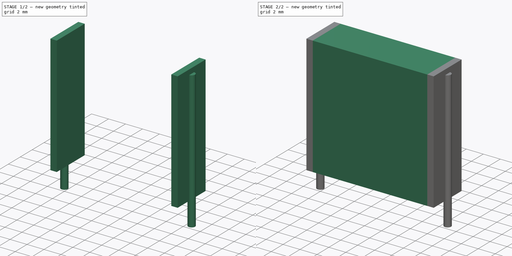
[diagram: build sequence overview — one tinted view per stage of 2, left to right]
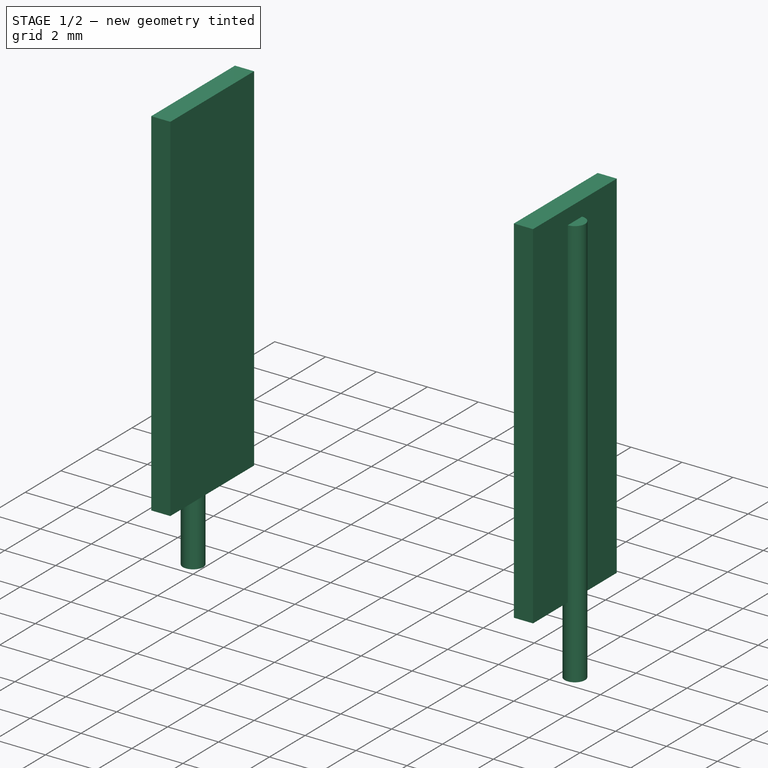
[diagram: stage 1 of 2 — iso view after this stage's code; geometry added in this stage tinted green]
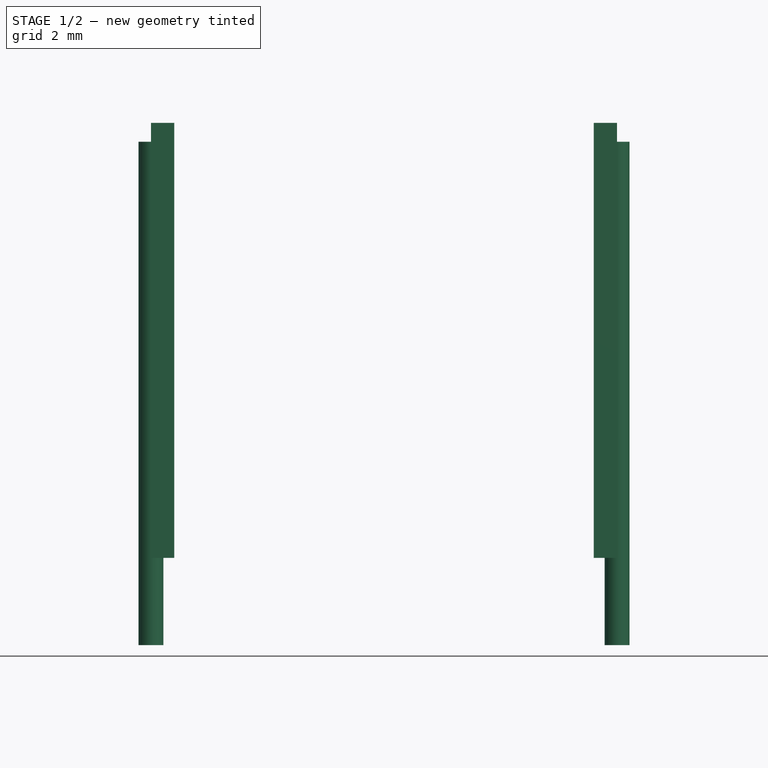
[diagram: stage 1 of 2 — front view after this stage's code; geometry added in this stage tinted green]
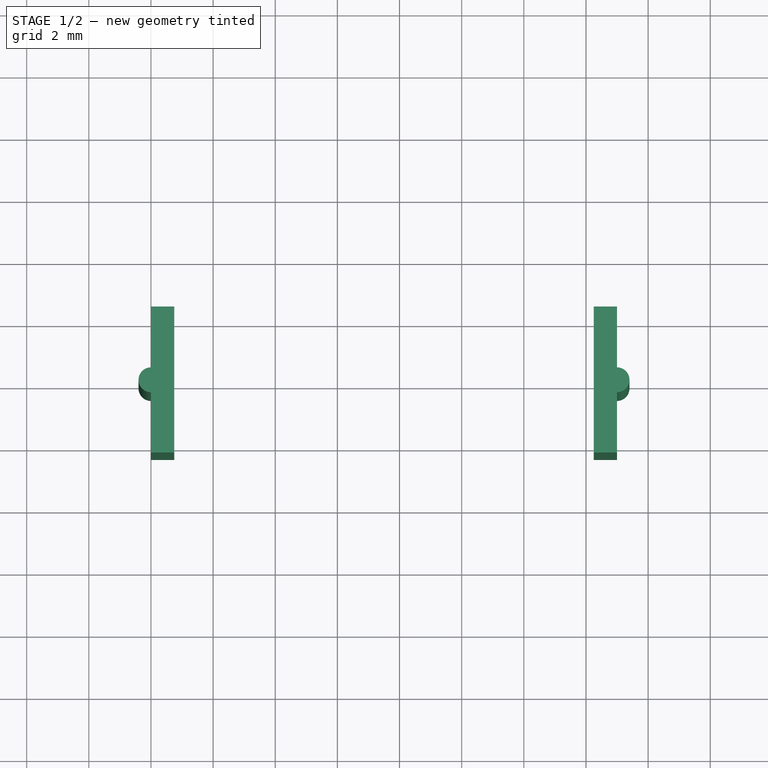
[diagram: stage 1 of 2 — top view after this stage's code; geometry added in this stage tinted green]
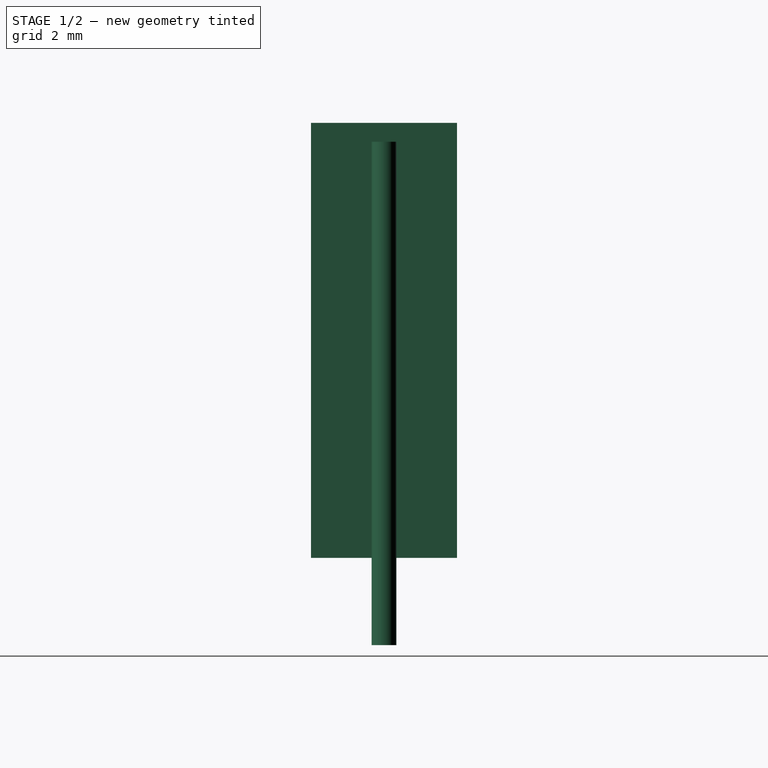
[diagram: stage 1 of 2 — right view after this stage's code; geometry added in this stage tinted green]
FCSTD DOCUMENT  (FreeCAD 0.16R6703 (Git))
Label: C_Rect_L16.5mm_W4.7mm_P15.00mm_MKT
License: All rights reserved
LicenseURL: http://en.wikipedia.org/wiki/All_rights_reserved
objects: Sketcher::SketchObject×3, PartDesign::Pad×3, Spreadsheet::Sheet×1
note: 9 computed .brp shape members not serialized (recipe doc carries the construction recipe); baked Part::Feature solids carry a one-line shape summary decoded from their .brp

FEATURE [Sketcher::SketchObject] Sketch001
  Placement = pos=(0,0,0.5) rot=(0,0,1;0rad)
  expr: Constraints[3] = Spreadsheet.d_wire / 2
  expr: Constraints[2] = max(Spreadsheet.RMx; Spreadsheet.RMy)
  sketch-geometry (2):
    g0: Circle CenterX=0 CenterY=0 CenterZ=0 NormalX=0 NormalY=0 NormalZ=1 Radius=0.4
    g1: Circle CenterX=15 CenterY=0 CenterZ=0 NormalX=0 NormalY=0 NormalZ=1 Radius=0.4
  constraints (5):
    c: Coincident(g0,g-1)
    c: PointOnObject(g1,g-1)
    c: DistanceX(g-1,g1) = 15
    c: Radius(g0) = 0.4
    c: Equal(g0,g1)
FEATURE [PartDesign::Pad] Pad001
  Length = 13
  Length2 = 3.2
  Placement = pos=(0,0,0.5) rot=(0,0,1;0rad)
  Reversed = true
  Sketch = -> Sketch001
  Type = 4
  expr: Length = Spreadsheet.H - 1
FEATURE [Sketcher::SketchObject] Sketch002
  Placement = pos=(0,0,0.105) rot=(0,0,1;0rad)
  expr: Constraints[21] = max(Spreadsheet.RMx; Spreadsheet.RMy) * 0.1 / 2
  expr: Constraints[20] = Spreadsheet.Wy
  expr: Constraints[18] = max(Spreadsheet.RMx; Spreadsheet.RMy)
  sketch-geometry (8):
    g0: LineSegment StartX=0 StartY=2.35 StartZ=0 EndX=0.75 EndY=2.35 EndZ=0
    g1: LineSegment StartX=0.75 StartY=2.35 StartZ=0 EndX=0.75 EndY=-2.35 EndZ=0
    g2: LineSegment StartX=0.75 StartY=-2.35 StartZ=0 EndX=0 EndY=-2.35 EndZ=0
    g3: LineSegment StartX=0 StartY=-2.35 StartZ=0 EndX=0 EndY=2.35 EndZ=0
    g4: LineSegment StartX=14.25 StartY=2.35 StartZ=0 EndX=15 EndY=2.35 EndZ=0
    g5: LineSegment StartX=15 StartY=2.35 StartZ=0 EndX=15 EndY=-2.35 EndZ=0
    g6: LineSegment StartX=15 StartY=-2.35 StartZ=0 EndX=14.25 EndY=-2.35 EndZ=0
    g7: LineSegment StartX=14.25 StartY=-2.35 StartZ=0 EndX=14.25 EndY=2.35 EndZ=0
  constraints (24):
    c: Coincident(g0,g1)
    c: Coincident(g1,g2)
    c: Coincident(g2,g3)
    c: Coincident(g3,g0)
    c: Horizontal(g0)
    c: Horizontal(g2)
    c: Vertical(g1)
    c: Vertical(g3)
    c: Coincident(g4,g5)
    c: Coincident(g5,g6)
    c: Coincident(g6,g7)
    c: Coincident(g7,g4)
    c: Horizontal(g4)
    c: Horizontal(g6)
    c: Vertical(g5)
    c: Vertical(g7)
    c: Equal(g6,g2)
    c: PointOnObject(g0,g-2)
    c: DistanceX(g0,g4) = 15
    c: Equal(g3,g5)
    c: DistanceY(g3,g3) = 4.7
    c: DistanceX(g2,g2) = 0.75
    c: Symmetric(g3,g3,g-1)
    c: DistanceY(g0,g4) = 0
FEATURE [PartDesign::Pad] Pad002
  Length = 14
  Length2 = 100
  Placement = pos=(0,0,0.105) rot=(0,0,1;0rad)
  Sketch = -> Sketch002
  Type = 0
  expr: Length = Spreadsheet.H
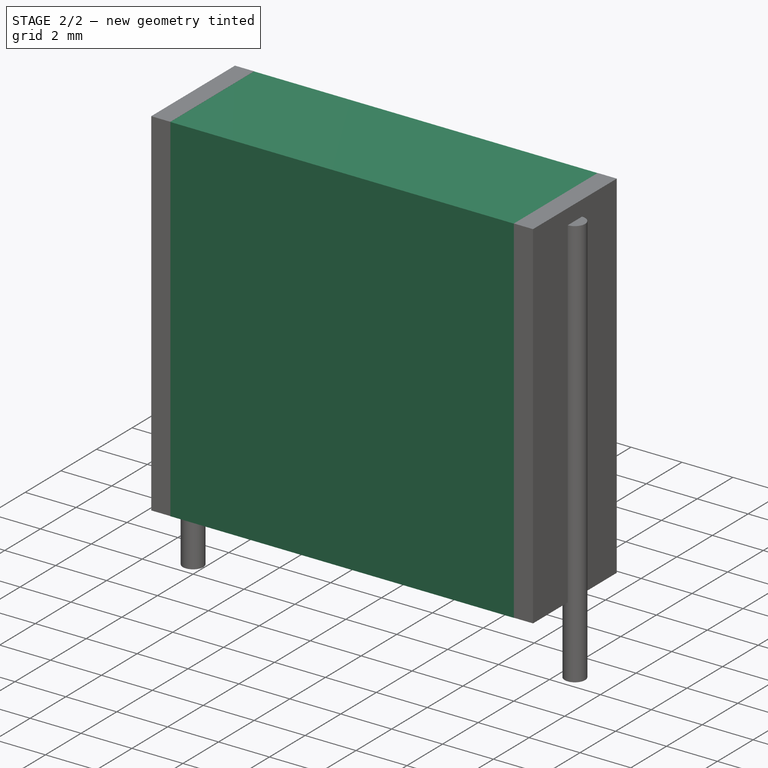
[diagram: stage 2 of 2 — iso view after this stage's code; geometry added in this stage tinted green]
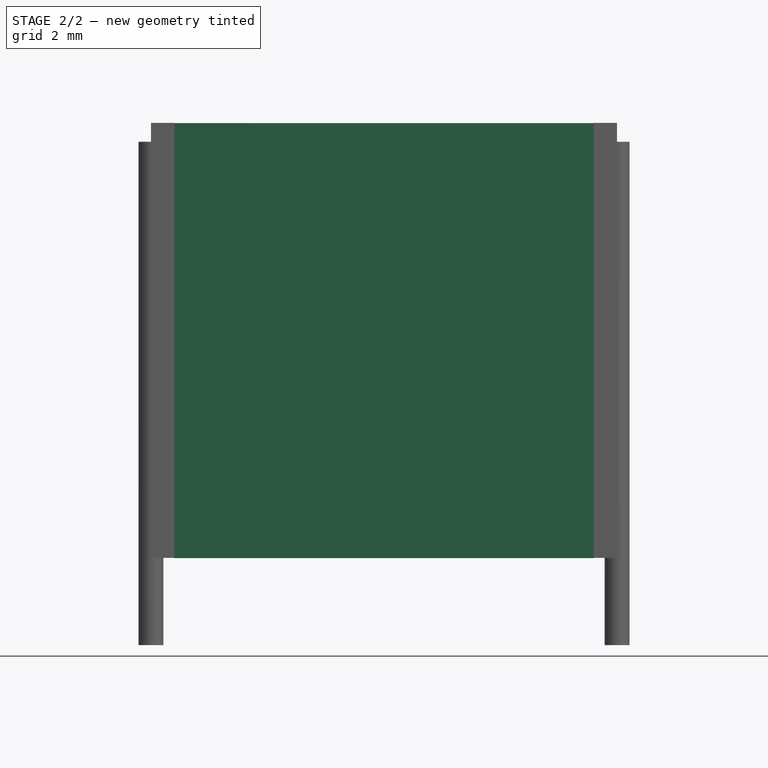
[diagram: stage 2 of 2 — front view after this stage's code; geometry added in this stage tinted green]
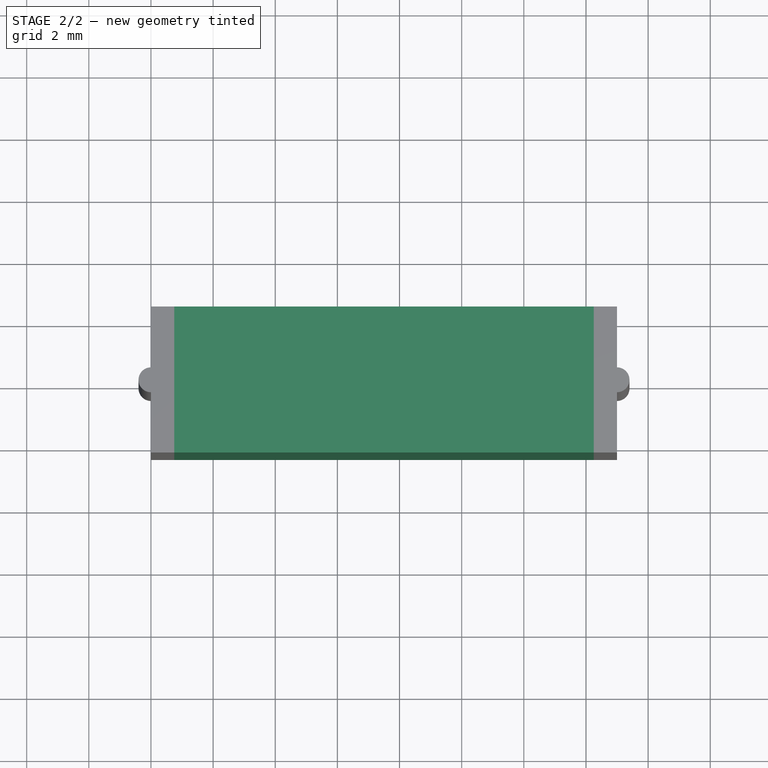
[diagram: stage 2 of 2 — top view after this stage's code; geometry added in this stage tinted green]
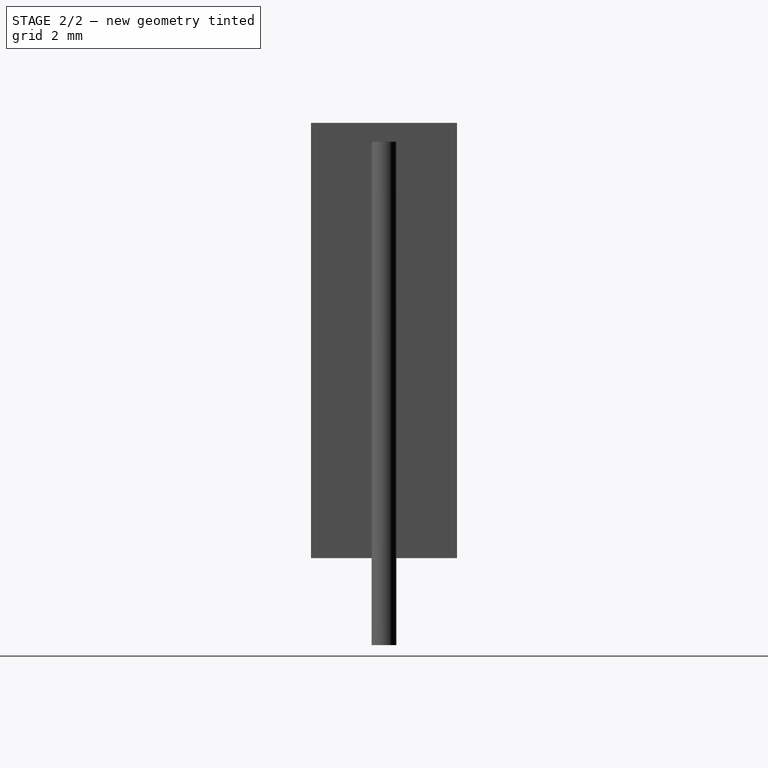
[diagram: stage 2 of 2 — right view after this stage's code; geometry added in this stage tinted green]
FEATURE [Spreadsheet::Sheet] Spreadsheet
  cells = A1=Wx; B1(Wx)=16.5; A2=Wy; B2(Wy)=4.7; A3=RM; B3(RMx)=15; C3(RMy)=0; A4=d_wire; B4(d_wire)=0.8; A5=H; B5(H)=14; A6=offsetx; B6(offset_x)=0.75
FEATURE [Sketcher::SketchObject] Sketch
  Placement = pos=(0,0,0.1) rot=(0,0,1;0rad)
  expr: Constraints[11] = -max(Spreadsheet.RMx; Spreadsheet.RMy) * 0.1 / 2
  expr: Constraints[10] = Spreadsheet.Wy / 2
  expr: Constraints[9] = Spreadsheet.Wy
  expr: Constraints[8] = max(Spreadsheet.RMx; Spreadsheet.RMy) * 0.9
  sketch-geometry (4):
    g0: LineSegment StartX=0.75 StartY=2.35 StartZ=0 EndX=14.25 EndY=2.35 EndZ=0
    g1: LineSegment StartX=14.25 StartY=2.35 StartZ=0 EndX=14.25 EndY=-2.35 EndZ=0
    g2: LineSegment StartX=14.25 StartY=-2.35 StartZ=0 EndX=0.75 EndY=-2.35 EndZ=0
    g3: LineSegment StartX=0.75 StartY=-2.35 StartZ=0 EndX=0.75 EndY=2.35 EndZ=0
  constraints (12):
    c: Coincident(g0,g1)
    c: Coincident(g1,g2)
    c: Coincident(g2,g3)
    c: Coincident(g3,g0)
    c: Horizontal(g0)
    c: Horizontal(g2)
    c: Vertical(g1)
    c: Vertical(g3)
    c: DistanceX(g0,g0) = 13.5
    c: DistanceY(g1,g1) = 4.7
    c: DistanceY(g-1,g0) = 2.35
    c: DistanceX(g2,g-1) = -0.75
FEATURE [PartDesign::Pad] Pad
  Length = 14
  Length2 = 100
  Placement = pos=(0,0,0.1) rot=(0,0,1;0rad)
  Sketch = -> Sketch
  Type = 0
  expr: Length = Spreadsheet.H
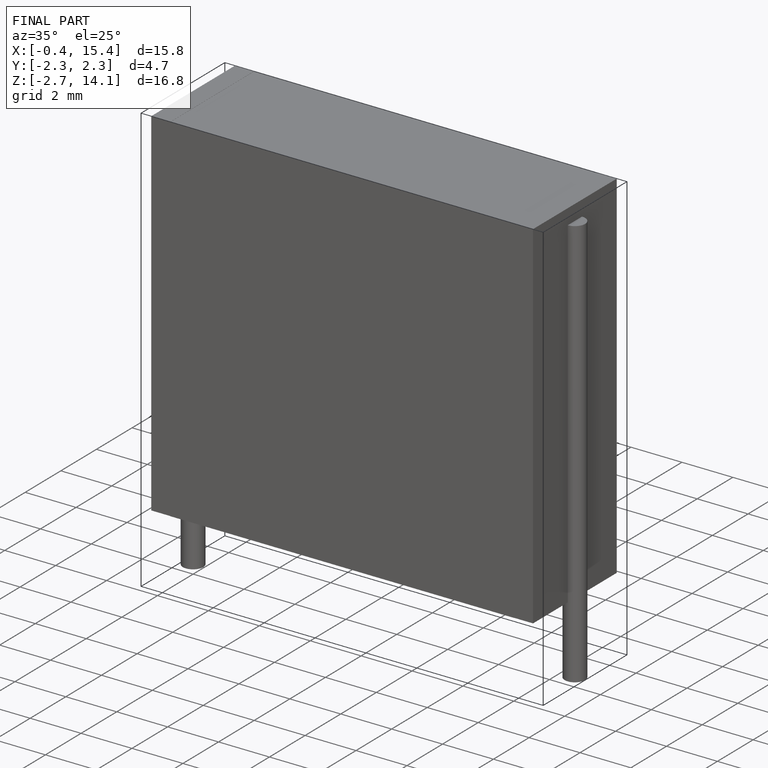
[diagram: finished part — iso view with bounding-box wireframe]
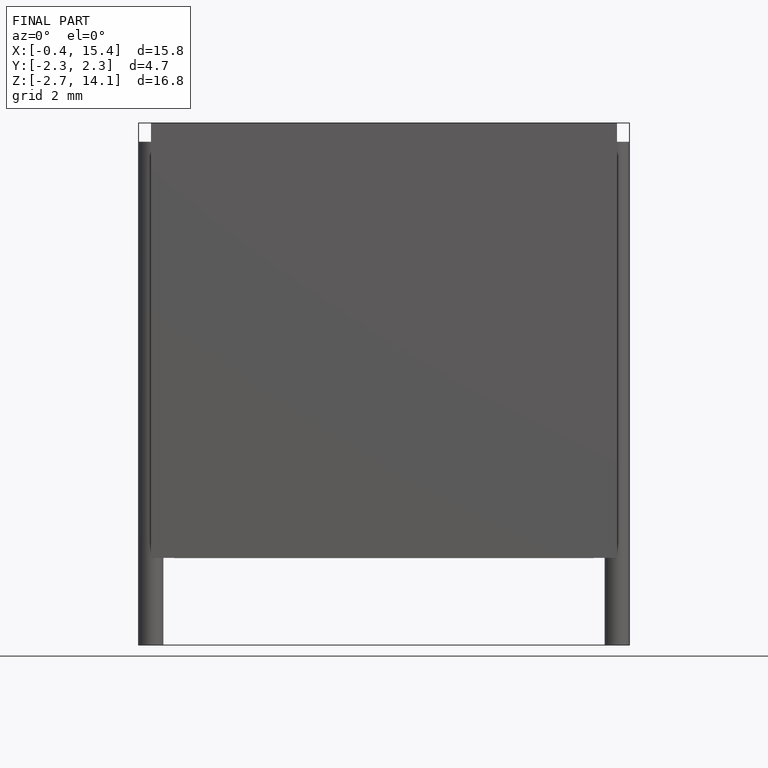
[diagram: finished part — front view with bounding-box wireframe]
